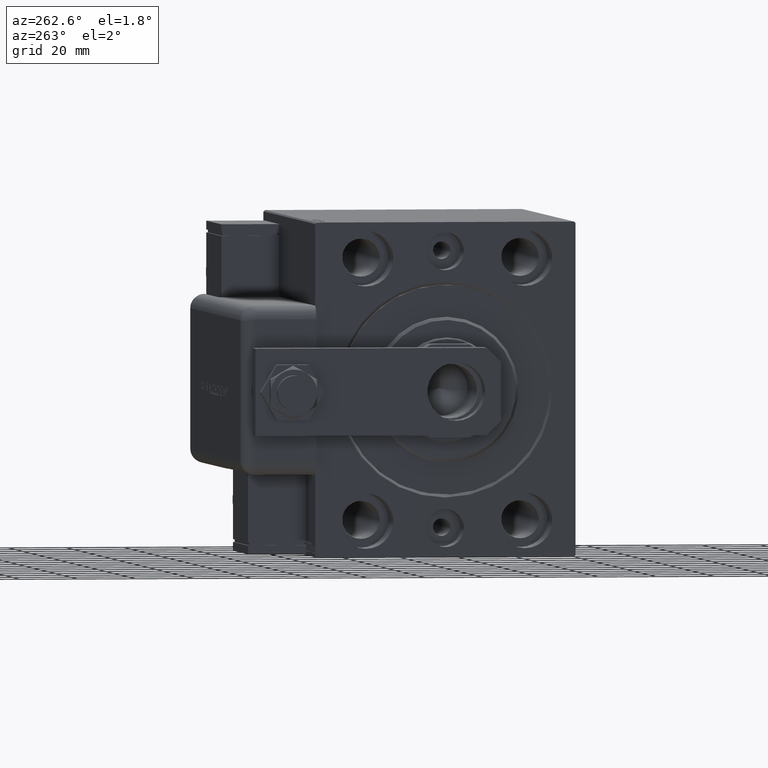
[diagram: clean part render]
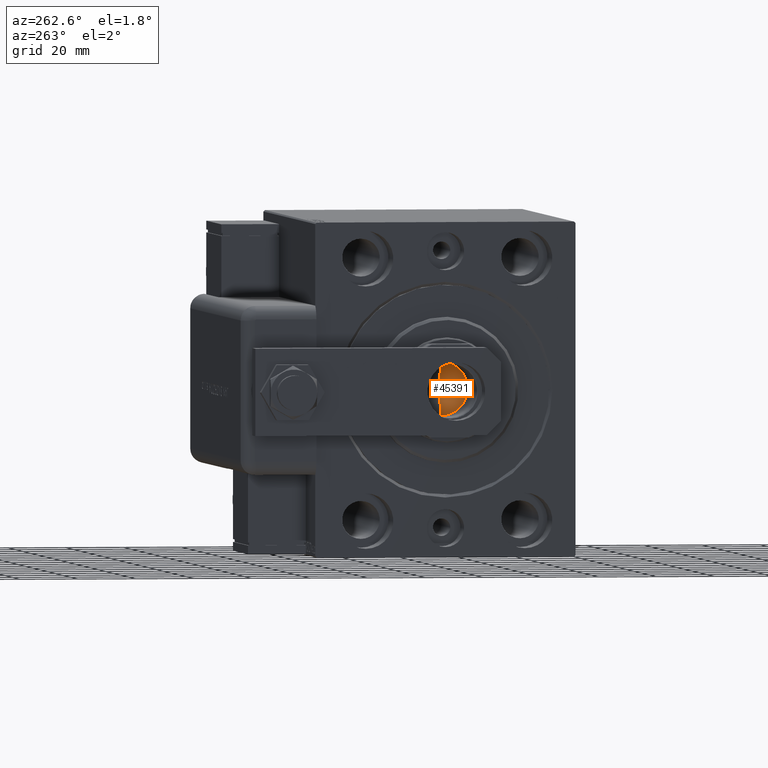
[diagram: same view with one face highlighted and labeled with its STEP entity id]
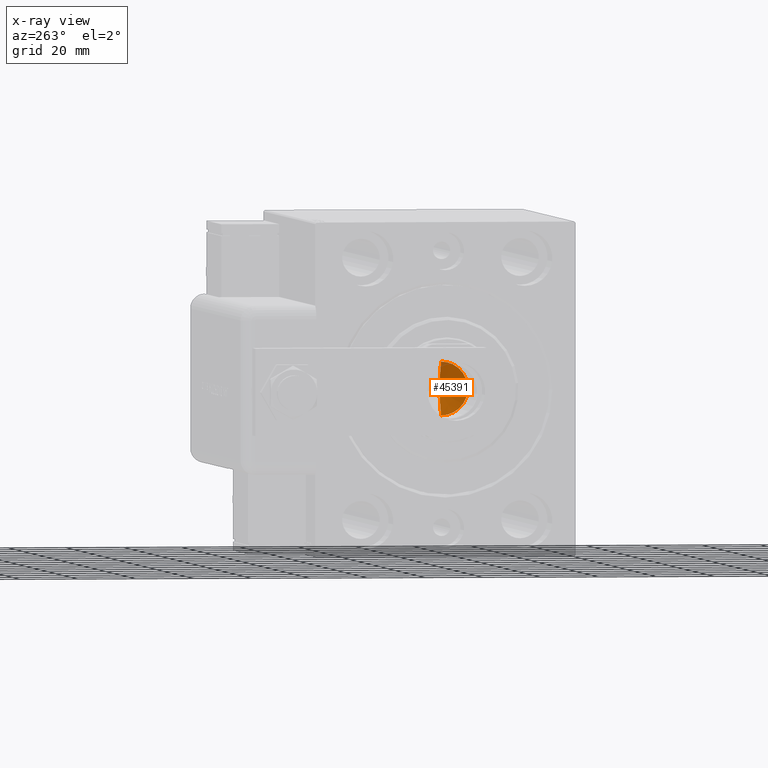
[diagram: x-ray of the same camera — body ghosted, the highlighted face saturated]
A machine part, auxiliary view. The second image highlights one B-rep face of the part: STEP entity #45391.
The next image is the same camera in x-ray: the body ghosted, the highlighted face saturated — about 2% of this face is hidden behind the body in this view.
In plain terms, the highlighted conical surface has half-angle 59 deg.
Its self-contained STEP definition (entity closure, byte-faithful):
#649 = AXIS2_PLACEMENT_3D ( 'NONE', #29115, #56218, #51395 ) ;
#1941 = CARTESIAN_POINT ( 'NONE',  ( -9.249999999999994671, 1.132798289211300909E-15, 109.0000000000000142 ) ) ;
#3284 = LINE ( 'NONE', #53251, #44370 ) ;
#3587 = DIRECTION ( 'NONE',  ( 0.8571673007021113344, 0.000000000000000000, 0.5150380749100558209 ) ) ;
#5184 = EDGE_CURVE ( 'NONE', #35922, #28986, #51594, .T. ) ;
#5909 = CONICAL_SURFACE ( 'NONE', #46252, 9.249999999999994671, 1.029744258676652535 ) ;
#6943 = CARTESIAN_POINT ( 'NONE',  ( -9.249999999999994671, 1.132798289211300909E-15, 109.0000000000000142 ) ) ;
#7628 = VERTEX_POINT ( 'NONE', #47949 ) ;
#12747 = ORIENTED_EDGE ( 'NONE', *, *, #41334, .T. ) ;
#13026 = CARTESIAN_POINT ( 'NONE',  ( 0.000000000000000000, 0.000000000000000000, 109.0000000000000142 ) ) ;
#13761 = CARTESIAN_POINT ( 'NONE',  ( -6.793016015247754405E-15, 0.000000000000000000, 103.4420392739950643 ) ) ;
#15214 = VECTOR ( 'NONE', #19079, 1000.000000000000000 ) ;
#17841 = DIRECTION ( 'NONE',  ( 1.000000000000000000, 0.000000000000000000, 0.000000000000000000 ) ) ;
#19079 = DIRECTION ( 'NONE',  ( -0.8571673007021113344, 1.049727191138617463E-16, 0.5150380749100558209 ) ) ;
#21927 = ORIENTED_EDGE ( 'NONE', *, *, #5184, .T. ) ;
#28986 = VERTEX_POINT ( 'NONE', #1941 ) ;
#29115 = CARTESIAN_POINT ( 'NONE',  ( 0.000000000000000000, 0.000000000000000000, 109.0000000000000142 ) ) ;
#31395 = DIRECTION ( 'NONE',  ( -0.000000000000000000, -0.000000000000000000, 1.000000000000000000 ) ) ;
#33926 = ORIENTED_EDGE ( 'NONE', *, *, #42498, .F. ) ;
#35922 = VERTEX_POINT ( 'NONE', #13761 ) ;
#41334 = EDGE_CURVE ( 'NONE', #28986, #7628, #53498, .T. ) ;
#42498 = EDGE_CURVE ( 'NONE', #35922, #7628, #3284, .T. ) ;
#44370 = VECTOR ( 'NONE', #3587, 1000.000000000000000 ) ;
#45391 = ADVANCED_FACE ( 'NONE', ( #54868 ), #5909, .F. ) ;
#46252 = AXIS2_PLACEMENT_3D ( 'NONE', #13026, #31395, #17841 ) ;
#47949 = CARTESIAN_POINT ( 'NONE',  ( 9.249999999999994671, 0.000000000000000000, 109.0000000000000142 ) ) ;
#48877 = EDGE_LOOP ( 'NONE', ( #33926, #21927, #12747 ) ) ;
#51395 = DIRECTION ( 'NONE',  ( 1.000000000000000000, 0.000000000000000000, 0.000000000000000000 ) ) ;
#51594 = LINE ( 'NONE', #6943, #15214 ) ;
#53251 = CARTESIAN_POINT ( 'NONE',  ( 9.249999999999994671, 0.000000000000000000, 109.0000000000000142 ) ) ;
#53498 = CIRCLE ( 'NONE', #649, 9.249999999999994671 ) ;
#54868 = FACE_OUTER_BOUND ( 'NONE', #48877, .T. ) ;
#56218 = DIRECTION ( 'NONE',  ( -0.000000000000000000, -0.000000000000000000, 1.000000000000000000 ) ) ;